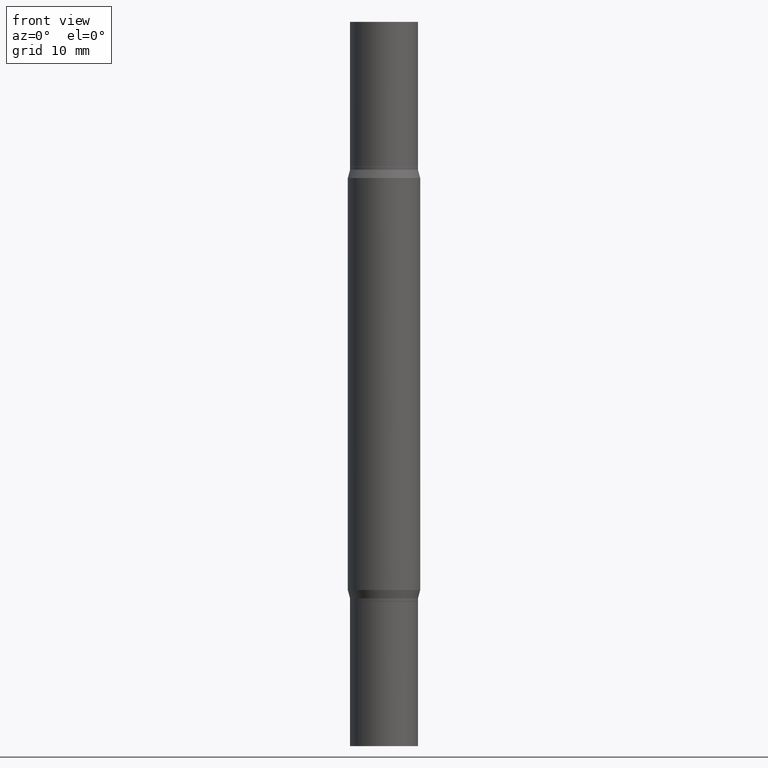
[diagram: clean part render]
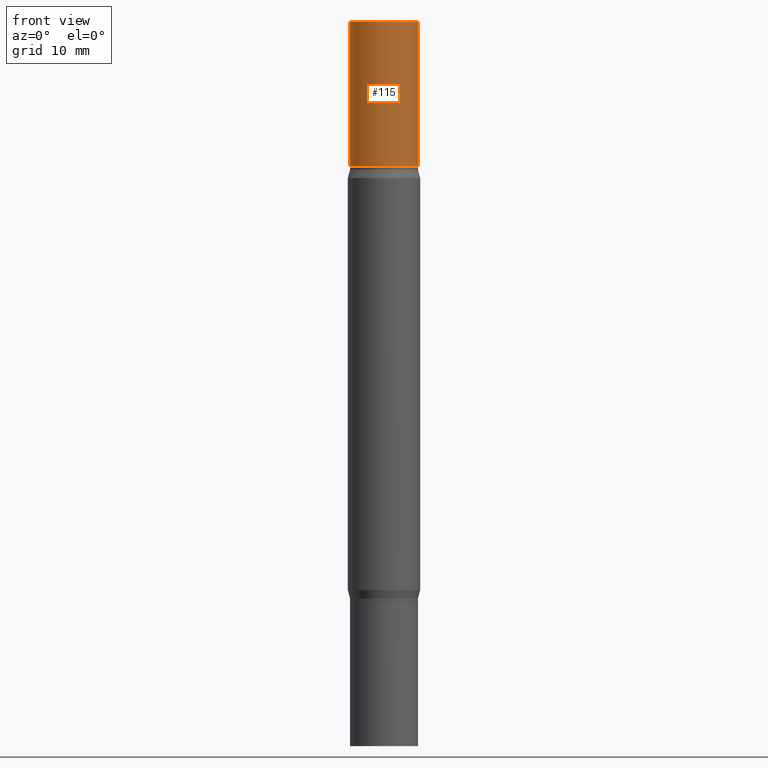
[diagram: same view with one face highlighted and labeled with its STEP entity id]
A machine part, front view. The second image highlights one B-rep face of the part: STEP entity #115.
In plain terms, the highlighted cylindrical surface (edge-blend (fillet) strip) has radius 2.9769 mm, axis along (-0, -0, -1).
Its self-contained STEP definition (entity closure, byte-faithful):
#51 = VECTOR ( 'NONE', #437, 39.37007874015748143 ) ;
#56 = ORIENTED_EDGE ( 'NONE', *, *, #695, .F. ) ;
#71 = CYLINDRICAL_SURFACE ( 'NONE', #563, 0.1171999999999999986 ) ;
#107 = DIRECTION ( 'NONE',  ( 1.000000000000000000, -6.982962677686266711E-15, 0.000000000000000000 ) ) ;
#115 = ADVANCED_FACE ( 'NONE', ( #442 ), #71, .T. ) ;
#133 = CARTESIAN_POINT ( 'NONE',  ( 0.1171999999999999986, -2.563901078157915826E-15, -0.4999999999999993339 ) ) ;
#135 = VERTEX_POINT ( 'NONE', #133 ) ;
#149 = CARTESIAN_POINT ( 'NONE',  ( -0.1171999999999999986, -7.925057676916510614E-15, -2.499999999999999556 ) ) ;
#190 = CARTESIAN_POINT ( 'NONE',  ( 6.113672015462842613E-29, 4.046951474745467748E-19, 5.463695987328526437E-16 ) ) ;
#194 = CIRCLE ( 'NONE', #969, 0.1171999999999999986 ) ;
#262 = DIRECTION ( 'NONE',  ( 1.000000000000000000, -6.982962677686265922E-15, 0.000000000000000000 ) ) ;
#320 = EDGE_CURVE ( 'NONE', #669, #135, #194, .T. ) ;
#350 = CARTESIAN_POINT ( 'NONE',  ( 4.890937612370273754E-29, -1.745497852333085568E-15, -0.4999999999999993339 ) ) ;
#364 = EDGE_CURVE ( 'NONE', #717, #135, #421, .T. ) ;
#381 = VERTEX_POINT ( 'NONE', #481 ) ;
#421 = LINE ( 'NONE', #554, #472 ) ;
#437 = DIRECTION ( 'NONE',  ( -2.445468806185136877E-29, -3.491805094961123683E-15, -1.000000000000000000 ) ) ;
#442 = FACE_OUTER_BOUND ( 'NONE', #921, .T. ) ;
#451 = ORIENTED_EDGE ( 'NONE', *, *, #320, .T. ) ;
#472 = VECTOR ( 'NONE', #856, 39.37007874015748143 ) ;
#481 = CARTESIAN_POINT ( 'NONE',  ( -0.1171999999999999986, -6.849621325398194571E-17, 5.463695987328557991E-16 ) ) ;
#491 = EDGE_CURVE ( 'NONE', #381, #669, #808, .T. ) ;
#554 = CARTESIAN_POINT ( 'NONE',  ( 0.1171999999999999986, -9.547511268080165952E-15, -2.499999999999999556 ) ) ;
#563 = AXIS2_PLACEMENT_3D ( 'NONE', #592, #895, #596 ) ;
#592 = CARTESIAN_POINT ( 'NONE',  ( 0.000000000000000000, -8.729108042255335103E-15, -2.499999999999999556 ) ) ;
#596 = DIRECTION ( 'NONE',  ( 1.000000000000000000, -6.982962677686269866E-15, 0.000000000000000000 ) ) ;
#604 = AXIS2_PLACEMENT_3D ( 'NONE', #190, #847, #107 ) ;
#638 = DIRECTION ( 'NONE',  ( 2.445468806185136597E-29, 3.491805094961124077E-15, 1.000000000000000000 ) ) ;
#669 = VERTEX_POINT ( 'NONE', #783 ) ;
#695 = EDGE_CURVE ( 'NONE', #381, #717, #965, .T. ) ;
#696 = ORIENTED_EDGE ( 'NONE', *, *, #364, .F. ) ;
#700 = ORIENTED_EDGE ( 'NONE', *, *, #491, .T. ) ;
#717 = VERTEX_POINT ( 'NONE', #778 ) ;
#778 = CARTESIAN_POINT ( 'NONE',  ( 0.1171999999999999986, -8.179985306773559567E-16, 5.463695987328526437E-16 ) ) ;
#783 = CARTESIAN_POINT ( 'NONE',  ( -0.1171999999999999986, -6.849621325398205664E-17, -0.4999999999999993339 ) ) ;
#808 = LINE ( 'NONE', #149, #51 ) ;
#847 = DIRECTION ( 'NONE',  ( 2.445468806185136597E-29, 3.491805094961124077E-15, 1.000000000000000000 ) ) ;
#856 = DIRECTION ( 'NONE',  ( -2.445468806185136877E-29, -3.491805094961123683E-15, -1.000000000000000000 ) ) ;
#895 = DIRECTION ( 'NONE',  ( -2.445468806185136597E-29, -3.491805094961124077E-15, -1.000000000000000000 ) ) ;
#921 = EDGE_LOOP ( 'NONE', ( #56, #700, #451, #696 ) ) ;
#965 = CIRCLE ( 'NONE', #604, 0.1171999999999999986 ) ;
#969 = AXIS2_PLACEMENT_3D ( 'NONE', #350, #638, #262 ) ;